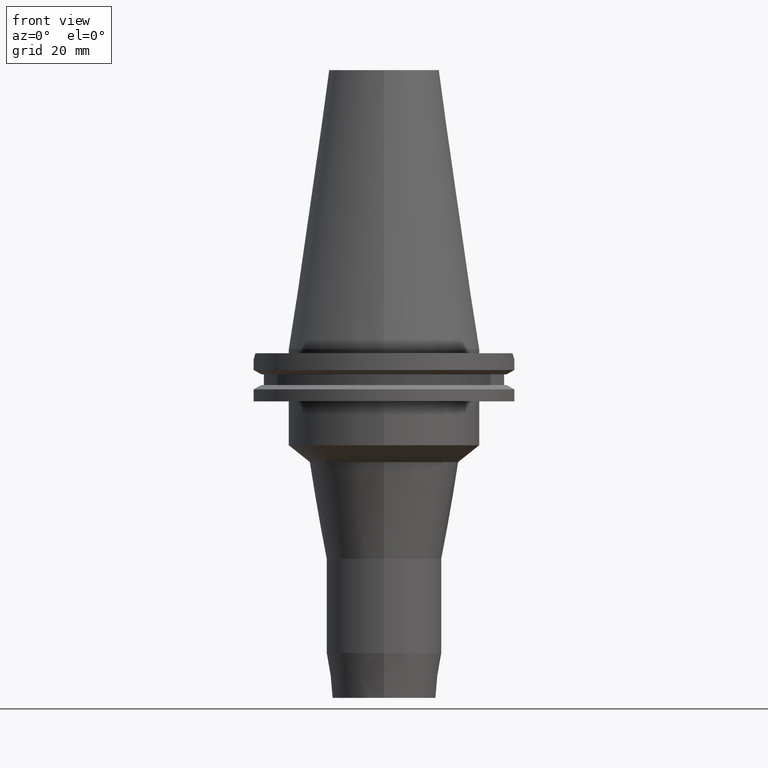
[diagram: clean part render]
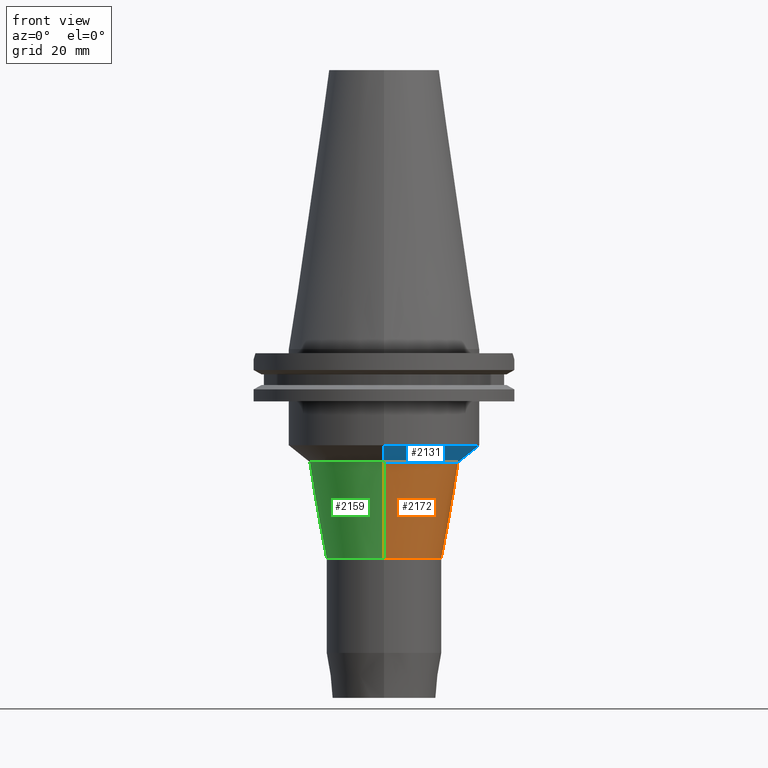
[diagram: same view with three faces highlighted in distinct colors, each labeled with its STEP entity id]
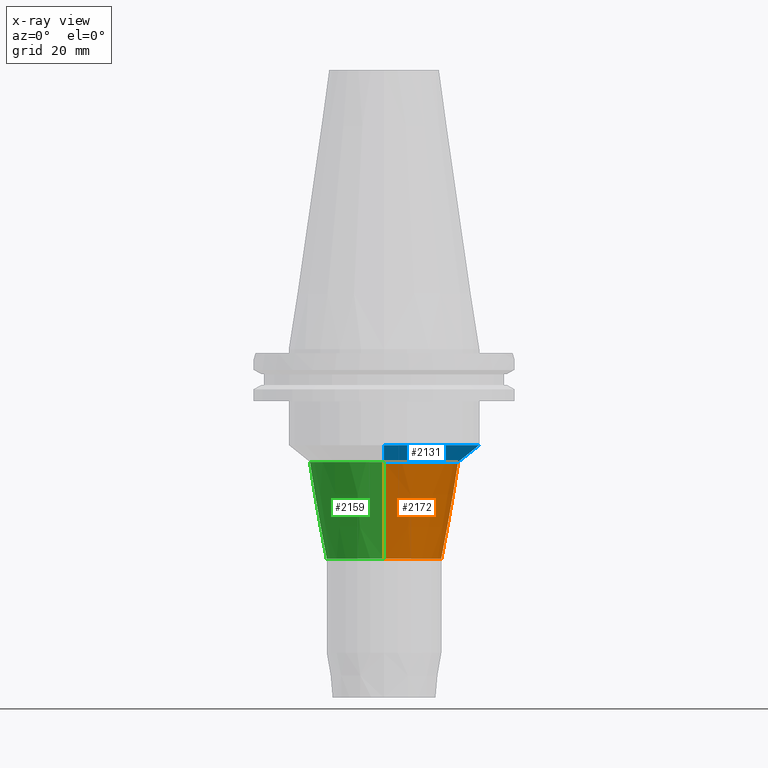
[diagram: x-ray of the same camera — body ghosted, the three highlighted faces saturated]
A machine part, front view with three faces highlighted in distinct colors.
The next image is the same camera in x-ray (body ghosted, the three faces saturated) — at least one of them is partly hidden behind the body in this view.
Their STEP definitions:

[orange] entity #2172 — the highlighted conical surface has half-angle 9.951 deg.
#868=DIRECTION('',(0.E0,1.728144908711E-1,-9.849543906928E-1));
#869=VECTOR('',#868,3.577712030829E1);
#870=CARTESIAN_POINT('',(0.E0,-2.718280483091E1,-4.113616826601E1));
#871=LINE('',#870,#869);
#883=DIRECTION('',(0.E0,-1.728144908711E-1,-9.849543906928E-1));
#884=VECTOR('',#883,3.577712030829E1);
#885=CARTESIAN_POINT('',(0.E0,2.718280483091E1,-4.113616826601E1));
#886=LINE('',#885,#884);
#890=CARTESIAN_POINT('',(0.E0,0.E0,-7.6375E1));
#891=DIRECTION('',(0.E0,0.E0,-1.E0));
#892=DIRECTION('',(0.E0,1.E0,0.E0));
#893=AXIS2_PLACEMENT_3D('',#890,#891,#892);
#898=CARTESIAN_POINT('',(0.E0,0.E0,-4.113616826601E1));
#899=DIRECTION('',(0.E0,0.E0,1.E0));
#900=DIRECTION('',(0.E0,-1.E0,0.E0));
#901=AXIS2_PLACEMENT_3D('',#898,#899,#900);
#1352=CARTESIAN_POINT('',(0.E0,2.718280483091E1,-4.113616826601E1));
#1353=VERTEX_POINT('',#1352);
#1354=CARTESIAN_POINT('',(0.E0,-2.718280483091E1,-4.113616826601E1));
#1355=VERTEX_POINT('',#1354);
#1356=CARTESIAN_POINT('',(0.E0,2.1E1,-7.6375E1));
#1357=VERTEX_POINT('',#1356);
#1358=CARTESIAN_POINT('',(0.E0,-2.1E1,-7.6375E1));
#1359=VERTEX_POINT('',#1358);
#2160=CARTESIAN_POINT('',(0.E0,0.E0,-5.875558413301E1));
#2161=DIRECTION('',(0.E0,0.E0,1.E0));
#2162=DIRECTION('',(0.E0,1.E0,0.E0));
#2163=AXIS2_PLACEMENT_3D('',#2160,#2161,#2162);
#2164=CONICAL_SURFACE('',#2163,2.409140241546E1,9.9515E0);
#2165=ORIENTED_EDGE('',*,*,#2150,.T.);
#2167=ORIENTED_EDGE('',*,*,#2166,.T.);
#2168=ORIENTED_EDGE('',*,*,#2153,.F.);
#2169=ORIENTED_EDGE('',*,*,#2124,.T.);
#2170=EDGE_LOOP('',(#2165,#2167,#2168,#2169));
#2171=FACE_OUTER_BOUND('',#2170,.F.);
#894=CIRCLE('',#893,2.1E1);
#902=CIRCLE('',#901,2.718280483091E1);
#2124=EDGE_CURVE('',#1355,#1353,#902,.T.);
#2150=EDGE_CURVE('',#1353,#1357,#886,.T.);
#2153=EDGE_CURVE('',#1355,#1359,#871,.T.);
#2166=EDGE_CURVE('',#1357,#1359,#894,.T.);
#2172=ADVANCED_FACE('',(#2171),#2164,.T.);

[blue] entity #2131 — the highlighted conical surface has half-angle 51.601 deg.
#830=DIRECTION('',(0.E0,-7.837042982802E-1,-6.211341021527E-1));
#831=VECTOR('',#830,9.878974998705E0);
#832=CARTESIAN_POINT('',(0.E0,3.4925E1,-3.5E1));
#833=LINE('',#832,#831);
#837=CARTESIAN_POINT('',(0.E0,0.E0,-3.5E1));
#838=DIRECTION('',(0.E0,0.E0,1.E0));
#839=DIRECTION('',(0.E0,-1.E0,0.E0));
#840=AXIS2_PLACEMENT_3D('',#837,#838,#839);
#853=DIRECTION('',(0.E0,7.837042982802E-1,-6.211341021527E-1));
#854=VECTOR('',#853,9.878974998705E0);
#855=CARTESIAN_POINT('',(0.E0,-3.4925E1,-3.5E1));
#856=LINE('',#855,#854);
#898=CARTESIAN_POINT('',(0.E0,0.E0,-4.113616826601E1));
#899=DIRECTION('',(0.E0,0.E0,1.E0));
#900=DIRECTION('',(0.E0,-1.E0,0.E0));
#901=AXIS2_PLACEMENT_3D('',#898,#899,#900);
#1348=CARTESIAN_POINT('',(0.E0,3.4925E1,-3.5E1));
#1349=VERTEX_POINT('',#1348);
#1350=CARTESIAN_POINT('',(0.E0,-3.4925E1,-3.5E1));
#1351=VERTEX_POINT('',#1350);
#1352=CARTESIAN_POINT('',(0.E0,2.718280483091E1,-4.113616826601E1));
#1353=VERTEX_POINT('',#1352);
#1354=CARTESIAN_POINT('',(0.E0,-2.718280483091E1,-4.113616826601E1));
#1355=VERTEX_POINT('',#1354);
#2117=CARTESIAN_POINT('',(0.E0,0.E0,-3.806808413300E1));
#2118=DIRECTION('',(0.E0,0.E0,1.E0));
#2119=DIRECTION('',(0.E0,1.E0,0.E0));
#2120=AXIS2_PLACEMENT_3D('',#2117,#2118,#2119);
#2121=CONICAL_SURFACE('',#2120,3.105390241545E1,5.1601E1);
#2123=ORIENTED_EDGE('',*,*,#2122,.T.);
#2125=ORIENTED_EDGE('',*,*,#2124,.F.);
#2127=ORIENTED_EDGE('',*,*,#2126,.F.);
#2128=ORIENTED_EDGE('',*,*,#2110,.T.);
#2129=EDGE_LOOP('',(#2123,#2125,#2127,#2128));
#2130=FACE_OUTER_BOUND('',#2129,.F.);
#841=CIRCLE('',#840,3.4925E1);
#902=CIRCLE('',#901,2.718280483091E1);
#2110=EDGE_CURVE('',#1351,#1349,#841,.T.);
#2122=EDGE_CURVE('',#1349,#1353,#833,.T.);
#2124=EDGE_CURVE('',#1355,#1353,#902,.T.);
#2126=EDGE_CURVE('',#1351,#1355,#856,.T.);
#2131=ADVANCED_FACE('',(#2130),#2121,.T.);

[green] entity #2159 — the highlighted conical surface has half-angle 9.951 deg.
#860=CARTESIAN_POINT('',(0.E0,0.E0,-4.113616826601E1));
#861=DIRECTION('',(0.E0,0.E0,-1.E0));
#862=DIRECTION('',(0.E0,-1.E0,0.E0));
#863=AXIS2_PLACEMENT_3D('',#860,#861,#862);
#868=DIRECTION('',(0.E0,1.728144908711E-1,-9.849543906928E-1));
#869=VECTOR('',#868,3.577712030829E1);
#870=CARTESIAN_POINT('',(0.E0,-2.718280483091E1,-4.113616826601E1));
#871=LINE('',#870,#869);
#875=CARTESIAN_POINT('',(0.E0,0.E0,-7.6375E1));
#876=DIRECTION('',(0.E0,0.E0,-1.E0));
#877=DIRECTION('',(0.E0,-1.E0,0.E0));
#878=AXIS2_PLACEMENT_3D('',#875,#876,#877);
#883=DIRECTION('',(0.E0,-1.728144908711E-1,-9.849543906928E-1));
#884=VECTOR('',#883,3.577712030829E1);
#885=CARTESIAN_POINT('',(0.E0,2.718280483091E1,-4.113616826601E1));
#886=LINE('',#885,#884);
#1352=CARTESIAN_POINT('',(0.E0,2.718280483091E1,-4.113616826601E1));
#1353=VERTEX_POINT('',#1352);
#1354=CARTESIAN_POINT('',(0.E0,-2.718280483091E1,-4.113616826601E1));
#1355=VERTEX_POINT('',#1354);
#1356=CARTESIAN_POINT('',(0.E0,2.1E1,-7.6375E1));
#1357=VERTEX_POINT('',#1356);
#1358=CARTESIAN_POINT('',(0.E0,-2.1E1,-7.6375E1));
#1359=VERTEX_POINT('',#1358);
#2145=CARTESIAN_POINT('',(0.E0,0.E0,-5.875558413301E1));
#2146=DIRECTION('',(0.E0,0.E0,1.E0));
#2147=DIRECTION('',(0.E0,1.E0,0.E0));
#2148=AXIS2_PLACEMENT_3D('',#2145,#2146,#2147);
#2149=CONICAL_SURFACE('',#2148,2.409140241546E1,9.9515E0);
#2151=ORIENTED_EDGE('',*,*,#2150,.F.);
#2152=ORIENTED_EDGE('',*,*,#2140,.F.);
#2154=ORIENTED_EDGE('',*,*,#2153,.T.);
#2156=ORIENTED_EDGE('',*,*,#2155,.T.);
#2157=EDGE_LOOP('',(#2151,#2152,#2154,#2156));
#2158=FACE_OUTER_BOUND('',#2157,.F.);
#864=CIRCLE('',#863,2.718280483091E1);
#879=CIRCLE('',#878,2.1E1);
#2140=EDGE_CURVE('',#1355,#1353,#864,.T.);
#2150=EDGE_CURVE('',#1353,#1357,#886,.T.);
#2153=EDGE_CURVE('',#1355,#1359,#871,.T.);
#2155=EDGE_CURVE('',#1359,#1357,#879,.T.);
#2159=ADVANCED_FACE('',(#2158),#2149,.T.);